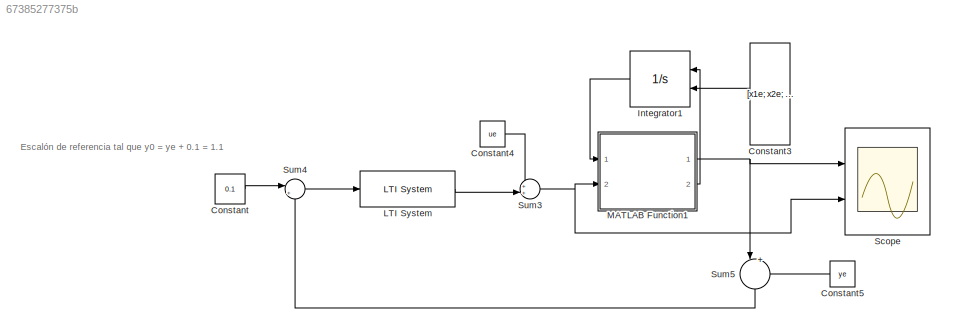
MODEL slx_67385277375b
KIND model
CONFIG AbsTol = auto
CONFIG EnableMultiTasking = off
CONFIG FixedStep = auto
CONFIG MaxStep = auto
CONFIG MinStep = auto
CONFIG RelTol = 1e-3
CONFIG SampleTimeConstraint = Unconstrained
CONFIG SolverName = VariableStepAuto
CONFIG StartTime = 0.0
CONFIG StopTime = 30
BLOCK [Constant] Constant
  Value = 0.1
BLOCK [Constant] Constant3
  Value = [x1e; x2e; x3e; x4e; x5e; x6e]
  VectorParams1D = off
BLOCK [Constant] Constant4
  Value = ue
BLOCK [Constant] Constant5
  NameLocation = top
  Value = ye
BLOCK [Integrator] Integrator1
  InitialConditionSource = external
  Ports = [2, 1]
BLOCK [Reference] LTI System  REF=cstblocks/LTI System
  Ports = [1, 1]
  SourceBlock = cstblocks/LTI System
  SourceProductBaseCode = CT
  SourceType = LTI Block
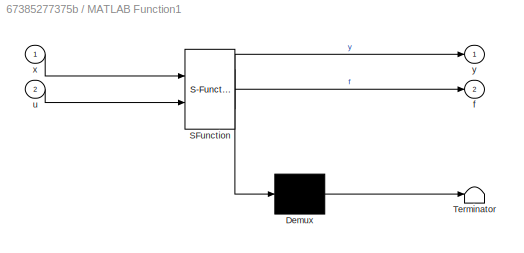
BLOCK [SubSystem] MATLAB Function1
  ErrorFcn = Stateflow.Translate.translate
  PermitHierarchicalResolution = ExplicitOnly
  Ports = [2, 2]
  RequestExecContextInheritance = off
  SFBlockType = MATLAB Function
  TreatAsAtomicUnit = on
BLOCK [Demux] MATLAB Function1/ Demux 
  Outputs = 1
  Ports = [1, 1]
BLOCK [S-Function] MATLAB Function1/ SFunction 
  EnableBusSupport = on
  FunctionName = sf_sfun
  PortCounts = [2 3]
  Ports = [2, 3]
  SFcnIsStateOwnerBlock = off
  SFunctionDeploymentMode = off
  Tag = Stateflow S-Function 1
BLOCK [Terminator] MATLAB Function1/ Terminator 
BLOCK [Outport] MATLAB Function1/f
  Port = 2
BLOCK [Inport] MATLAB Function1/u
  Port = 2
BLOCK [Inport] MATLAB Function1/x
BLOCK [Outport] MATLAB Function1/y
BLOCK [Scope] Scope
  Floating = off
  NumInputPorts = 2
  Ports = [2]
  ScopeSpecificationString = Simulink.scopes.TimeScopeBlockCfg('CurrentConfiguration', extmgr.ConfigurationSet(extmgr.Configuration('Core','General UI',true,'FigureColor',[1 1 1]),extmgr.Configuration('Core','Source UI',true),extmgr.Configuration('Sources','WiredSimulink',true,'DataLoggingVariableName','ScopeData1'),extmgr.Configuration('Visuals','Time Domain',true,'SerializedDisplays',{struct('MinYLimReal','-1.24897','MaxYLi...<+2312ch>
BLOCK [Sum] Sum3
  Inputs = ++|
  NameLocation = top
  Ports = [2, 1]
BLOCK [Sum] Sum4
  Inputs = |+-
  NameLocation = top
  Ports = [2, 1]
BLOCK [Sum] Sum5
  Inputs = |+-
  NameLocation = right
  Ports = [2, 1]
ANNOTATION (root): Escalón de referencia tal que y0 = ye + 0.1 = 1.1
LINE Constant3:1 -> Integrator1:2
LINE Constant4:1 -> Sum3:1
LINE Constant5:1 -> Sum5:2
LINE Constant:1 -> Sum4:1
LINE Integrator1:1 -> MATLAB Function1:1
LINE LTI System:1 -> Sum3:2
NET MATLAB Function1:1 -> Scope:1, Sum5:1
LINE MATLAB Function1:2 -> Integrator1:1
NET Sum3:1 -> MATLAB Function1:2, Scope:2
LINE Sum4:1 -> LTI System:1
LINE Sum5:1 -> Sum4:2
note: NET lines group one-source signal fan-out (src -> all destinations, sorted); 1:1 wires keep LINE
CHART MATLAB Function1 states=1 transitions=1
  STATE_LABEL 'eML_blk_kernel()'
  STATE_LABEL 'SCRIPT:\nfunction [y, f]= fcn(x, u)\n    \np = 2;\n\nf1 = (x(3) - sqrt(x(1) - x(2)))/(x(1)^2);\nf2 = (sqrt(x(1)-x(2))) - sqrt(x(2))/(x(2)^2);\nf3 = x(4);\nf4 = x(5);\nf5 = x(6);\nf6 = -4*p*x(6) -6*(p^2)*x(5) -4*(p^3)*x(4) -(p^4)*x(3) + (p^4)*u;\n\n% Lo que sale por la f son los x derivados\nf = [f1; f2; f3; f4; f5; f6];\n\ny = x(2);'
CHART  states=0 transitions=0
